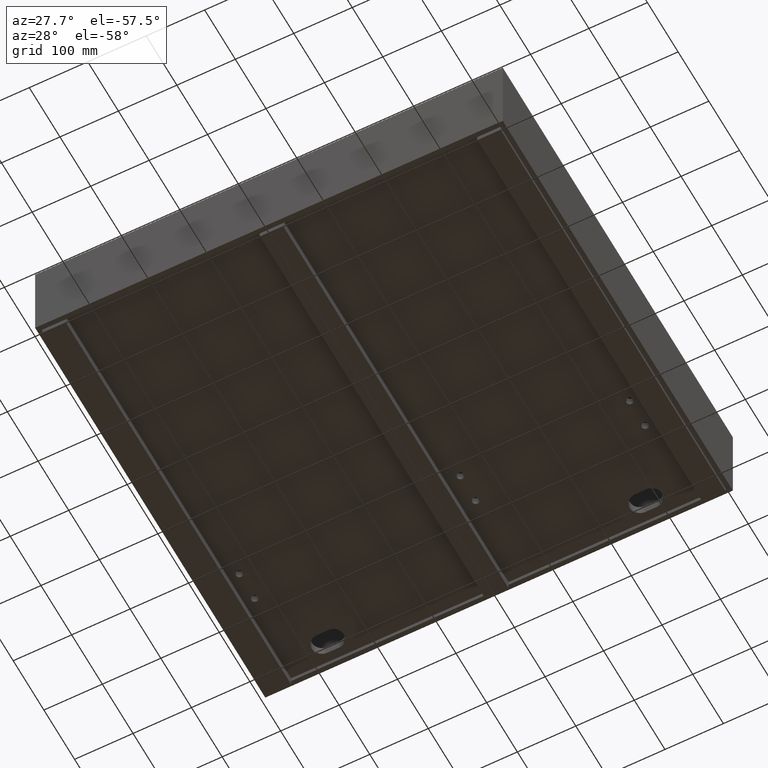
[diagram: clean part render]
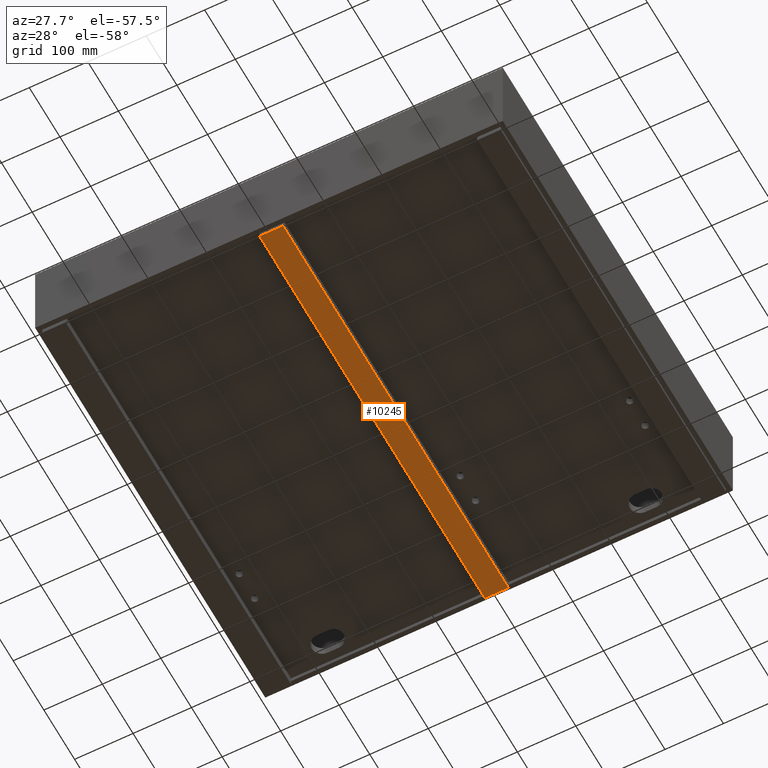
[diagram: same view with one face highlighted and labeled with its STEP entity id]
A machine part, auxiliary view. The second image highlights one B-rep face of the part: STEP entity #10245.
In plain terms, the highlighted planar face has unit normal (-0, 0, -1).
Its self-contained STEP definition (entity closure, byte-faithful):
#78 = FACE_OUTER_BOUND ( 'NONE', #1036, .T. ) ;
#218 = LINE ( 'NONE', #1339, #9031 ) ;
#1036 = EDGE_LOOP ( 'NONE', ( #9752, #2099, #5621, #6112 ) ) ;
#1339 = CARTESIAN_POINT ( 'NONE',  ( 380.0000000000000000, 741.9999000000000251, -158.0000000000003126 ) ) ;
#1714 = CARTESIAN_POINT ( 'NONE',  ( 420.0000000000000568, 741.9999000000000251, -158.0000000000003126 ) ) ;
#1789 = VERTEX_POINT ( 'NONE', #4644 ) ;
#2099 = ORIENTED_EDGE ( 'NONE', *, *, #2589, .T. ) ;
#2589 = EDGE_CURVE ( 'NONE', #9765, #9862, #3688, .T. ) ;
#2675 = DIRECTION ( 'NONE',  ( -1.000000000000000000, -5.956193060860204768E-35, 0.0000000000000000000 ) ) ;
#2749 = CARTESIAN_POINT ( 'NONE',  ( 379.9999999999999432, 8.000000000000007105, -158.0000000000003126 ) ) ;
#3090 = CARTESIAN_POINT ( 'NONE',  ( 380.0000000000000000, 741.9999000000000251, -158.0000000000003126 ) ) ;
#3475 = LINE ( 'NONE', #6910, #3997 ) ;
#3516 = PLANE ( 'NONE',  #6371 ) ;
#3688 = LINE ( 'NONE', #7122, #7361 ) ;
#3997 = VECTOR ( 'NONE', #10353, 1000.000000000000000 ) ;
#4644 = CARTESIAN_POINT ( 'NONE',  ( 420.0000000000000568, 741.9999000000000251, -158.0000000000003126 ) ) ;
#4777 = DIRECTION ( 'NONE',  ( 7.562828173581198609E-17, 1.000000000000000000, 0.0000000000000000000 ) ) ;
#5144 = DIRECTION ( 'NONE',  ( 1.000000000000000000, 5.956193060860204768E-35, 0.0000000000000000000 ) ) ;
#5535 = EDGE_CURVE ( 'NONE', #9581, #1789, #9436, .T. ) ;
#5621 = ORIENTED_EDGE ( 'NONE', *, *, #8617, .T. ) ;
#6010 = CARTESIAN_POINT ( 'NONE',  ( 419.9999999999999432, 8.000000000000007105, -158.0000000000003126 ) ) ;
#6112 = ORIENTED_EDGE ( 'NONE', *, *, #5535, .T. ) ;
#6371 = AXIS2_PLACEMENT_3D ( 'NONE', #6951, #10397, #2675 ) ;
#6910 = CARTESIAN_POINT ( 'NONE',  ( 420.0000000000000568, 741.9999000000000251, -158.0000000000003126 ) ) ;
#6951 = CARTESIAN_POINT ( 'NONE',  ( 0.0000000000000000000, 0.0000000000000000000, -158.0000000000003126 ) ) ;
#7122 = CARTESIAN_POINT ( 'NONE',  ( 419.9999999999999432, 8.000000000000007105, -158.0000000000003126 ) ) ;
#7361 = VECTOR ( 'NONE', #10575, 1000.000000000000000 ) ;
#8617 = EDGE_CURVE ( 'NONE', #9862, #9581, #218, .T. ) ;
#8818 = EDGE_CURVE ( 'NONE', #1789, #9765, #3475, .T. ) ;
#9031 = VECTOR ( 'NONE', #4777, 1000.000000000000000 ) ;
#9184 = VECTOR ( 'NONE', #5144, 1000.000000000000000 ) ;
#9436 = LINE ( 'NONE', #1714, #9184 ) ;
#9581 = VERTEX_POINT ( 'NONE', #3090 ) ;
#9752 = ORIENTED_EDGE ( 'NONE', *, *, #8818, .T. ) ;
#9765 = VERTEX_POINT ( 'NONE', #6010 ) ;
#9862 = VERTEX_POINT ( 'NONE', #2749 ) ;
#10245 = ADVANCED_FACE ( 'NONE', ( #78 ), #3516, .T. ) ;
#10353 = DIRECTION ( 'NONE',  ( -1.512565634716239722E-16, -1.000000000000000000, 0.0000000000000000000 ) ) ;
#10397 = DIRECTION ( 'NONE',  ( -0.0000000000000000000, 0.0000000000000000000, -1.000000000000000000 ) ) ;
#10575 = DIRECTION ( 'NONE',  ( -1.000000000000000000, 1.301042606982606060E-16, 0.0000000000000000000 ) ) ;